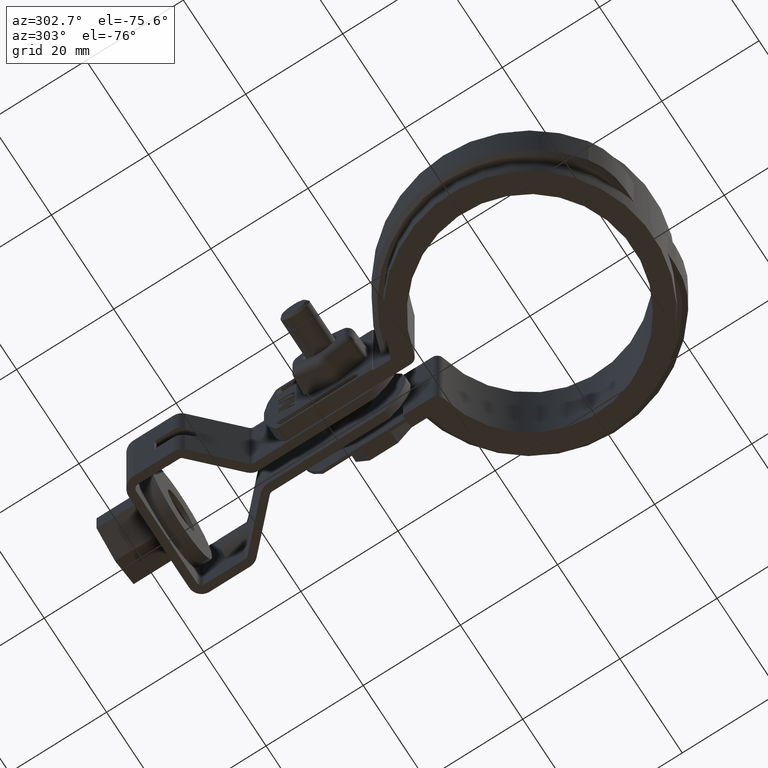
[diagram: clean part render]
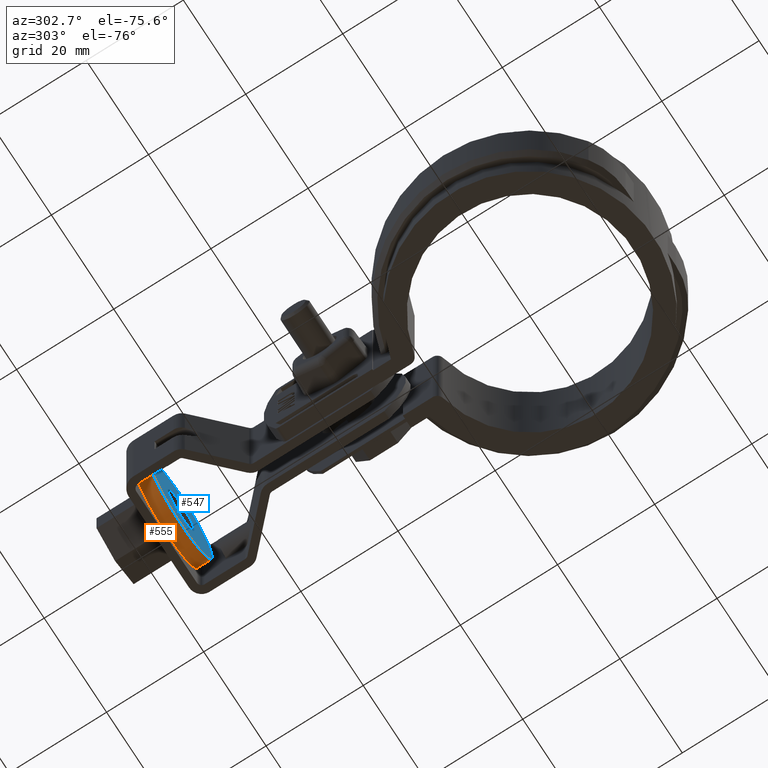
[diagram: same view with the hole feature highlighted: cylindrical wall and planar end face, labeled with their STEP entity ids]
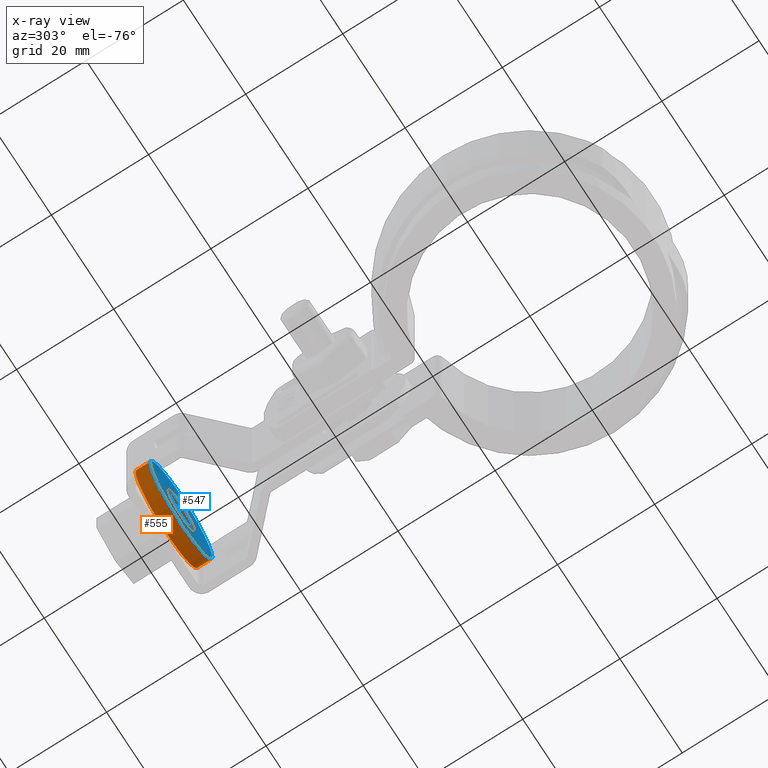
[diagram: x-ray of the same camera — body ghosted, the hole faces saturated]
A machine part, auxiliary view. The highlighted faces form one hole feature of diameter 20 mm: the cylindrical wall (entity #555, orange) and its adjacent planar end face (entity #547, blue) — they share a circular edge in the B-rep.
The next image is the same camera in x-ray (body ghosted, the hole faces saturated) — the bore reads through the body.
Wall:
#555 = ADVANCED_FACE( '', ( #1132, #1133 ), #1134, .T. );
#1132 = FACE_OUTER_BOUND( '', #2273, .T. );
#1133 = FACE_OUTER_BOUND( '', #2274, .T. );
#1134 = CYLINDRICAL_SURFACE( '', #2275, 10.0000000000000 );
#2273 = EDGE_LOOP( '', ( #6057 ) );
#2274 = EDGE_LOOP( '', ( #6058 ) );
#2275 = AXIS2_PLACEMENT_3D( '', #6059, #6060, #6061 );
#6057 = ORIENTED_EDGE( '', *, *, #7882, .F. );
#6058 = ORIENTED_EDGE( '', *, *, #7880, .T. );
#6059 = CARTESIAN_POINT( '', ( 4.31973178515162E-013, 71.8025110200043, -12.5000000000246 ) );
#6060 = DIRECTION( '', ( -9.21184560650171E-016, 1.00000000000000, 1.26121335597421E-013 ) );
#6061 = DIRECTION( '', ( 1.00000000000000, 9.21184560649447E-016, 5.73783117496114E-015 ) );
#7880 = EDGE_CURVE( '', #9225, #9225, #9226, .T. );
#7882 = EDGE_CURVE( '', #9229, #9229, #9230, .T. );
#9225 = VERTEX_POINT( '', #13487 );
#9226 = CIRCLE( '', #13488, 10.0000000000000 );
#9229 = VERTEX_POINT( '', #13491 );
#9230 = CIRCLE( '', #13492, 10.0000000000000 );
#13487 = CARTESIAN_POINT( '', ( 10.0000000000004, 71.8025110200043, -12.5000000000246 ) );
#13488 = AXIS2_PLACEMENT_3D( '', #15223, #15224, #15225 );
#13491 = CARTESIAN_POINT( '', ( 10.0000000000004, 74.8025110200043, -12.5000000000242 ) );
#13492 = AXIS2_PLACEMENT_3D( '', #15229, #15230, #15231 );
#15223 = CARTESIAN_POINT( '', ( 4.31973178515162E-013, 71.8025110200043, -12.5000000000246 ) );
#15224 = DIRECTION( '', ( -9.21184560650171E-016, 1.00000000000000, 1.26121335597421E-013 ) );
#15225 = DIRECTION( '', ( 1.00000000000000, 9.21184560649447E-016, 5.73783117496114E-015 ) );
#15229 = CARTESIAN_POINT( '', ( 4.29209624833212E-013, 74.8025110200043, -12.5000000000243 ) );
#15230 = DIRECTION( '', ( -9.21184560650171E-016, 1.00000000000000, 1.26121335597421E-013 ) );
#15231 = DIRECTION( '', ( 1.00000000000000, 9.21184560649447E-016, 5.73783117496114E-015 ) );
End face:
#547 = ADVANCED_FACE( '', ( #1112, #1113 ), #1114, .F. );
#1112 = FACE_OUTER_BOUND( '', #2253, .T. );
#1113 = FACE_BOUND( '', #2254, .T. );
#1114 = PLANE( '', #2255 );
#2253 = EDGE_LOOP( '', ( #5999 ) );
#2254 = EDGE_LOOP( '', ( #6000 ) );
#2255 = AXIS2_PLACEMENT_3D( '', #6001, #6002, #6003 );
#5999 = ORIENTED_EDGE( '', *, *, #7880, .F. );
#6000 = ORIENTED_EDGE( '', *, *, #7881, .T. );
#6001 = CARTESIAN_POINT( '', ( 4.31973178515162E-013, 71.8025110200043, -12.5000000000246 ) );
#6002 = DIRECTION( '', ( -1.16181027120923E-028, 1.00000000000000, 1.26121335597421E-013 ) );
#6003 = DIRECTION( '', ( 1.00000000000000, 2.24207754291971E-044, 9.21184560650171E-016 ) );
#7880 = EDGE_CURVE( '', #9225, #9225, #9226, .T. );
#7881 = EDGE_CURVE( '', #9227, #9227, #9228, .T. );
#9225 = VERTEX_POINT( '', #13487 );
#9226 = CIRCLE( '', #13488, 10.0000000000000 );
#9227 = VERTEX_POINT( '', #13489 );
#9228 = CIRCLE( '', #13490, 4.25000000000000 );
#13487 = CARTESIAN_POINT( '', ( 10.0000000000004, 71.8025110200043, -12.5000000000246 ) );
#13488 = AXIS2_PLACEMENT_3D( '', #15223, #15224, #15225 );
#13489 = CARTESIAN_POINT( '', ( 4.25000000000043, 71.8025110200043, -12.5000000000246 ) );
#13490 = AXIS2_PLACEMENT_3D( '', #15226, #15227, #15228 );
#15223 = CARTESIAN_POINT( '', ( 4.31973178515162E-013, 71.8025110200043, -12.5000000000246 ) );
#15224 = DIRECTION( '', ( -9.21184560650171E-016, 1.00000000000000, 1.26121335597421E-013 ) );
#15225 = DIRECTION( '', ( 1.00000000000000, 9.21184560649447E-016, 5.73783117496114E-015 ) );
#15226 = CARTESIAN_POINT( '', ( 4.29804774170191E-013, 71.8025110200043, -12.5000000000246 ) );
#15227 = DIRECTION( '', ( -9.21184560650171E-016, 1.00000000000000, 1.26121335597421E-013 ) );
#15228 = DIRECTION( '', ( 1.00000000000000, 9.21184560649447E-016, 5.73783117496114E-015 ) );